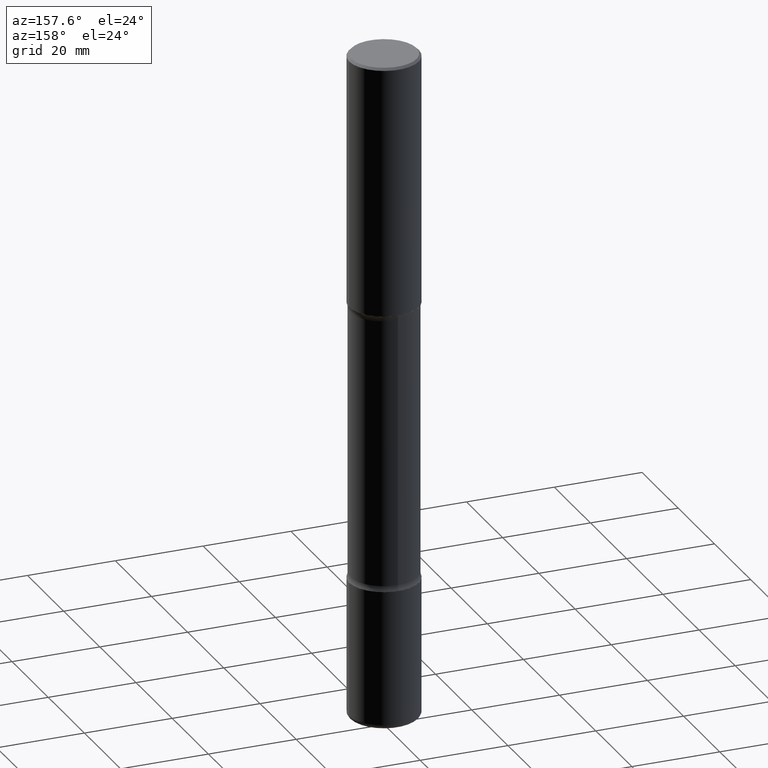
[diagram: clean part render]
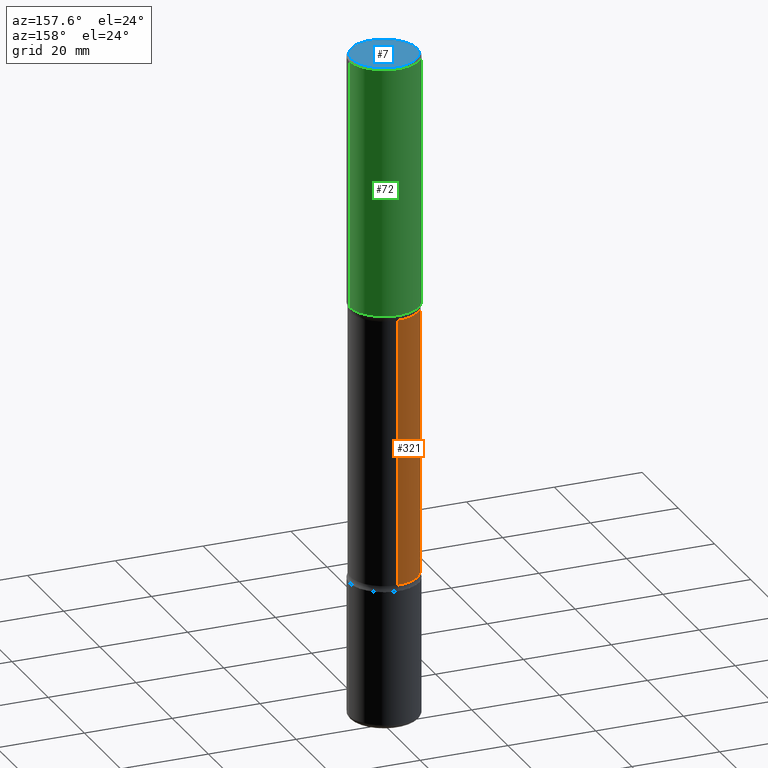
[diagram: same view with three faces highlighted in distinct colors, each labeled with its STEP entity id]
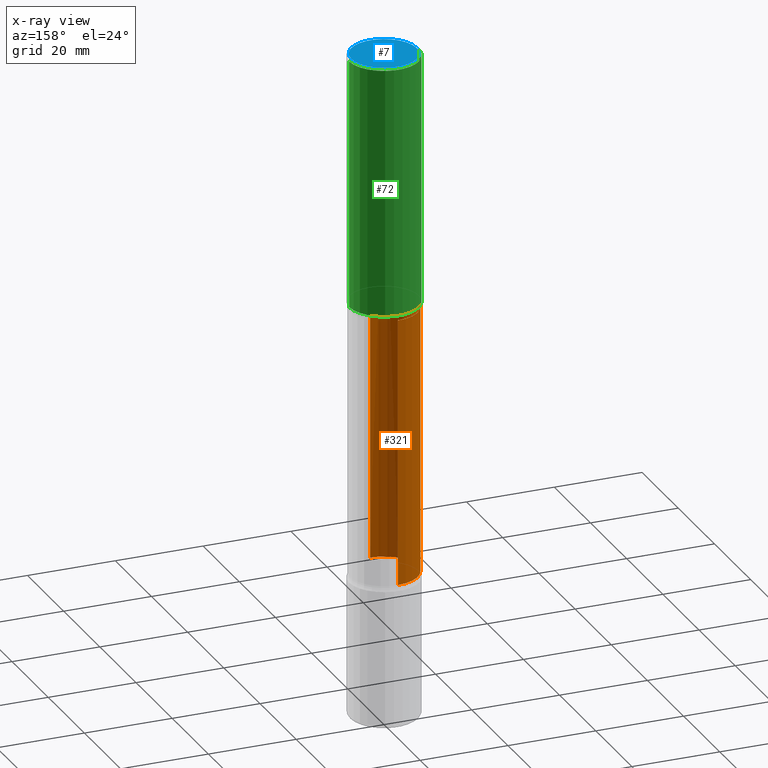
[diagram: x-ray of the same camera — body ghosted, the three highlighted faces saturated]
A machine part, auxiliary view with three faces highlighted in distinct colors.
The next image is the same camera in x-ray (body ghosted, the three faces saturated) — at least one of them is partly hidden behind the body in this view.
Their STEP definitions:

[orange] entity #321 — the highlighted cylindrical surface (edge-blend (fillet) strip) has radius 7.6835 mm, axis along (0, -0, -1).
#3 = VERTEX_POINT ( 'NONE', #541 ) ;
#19 = DIRECTION ( 'NONE',  ( 6.982962677686265133E-15, 1.000000000000000000, -3.612360983357704414E-15 ) ) ;
#25 = ORIENTED_EDGE ( 'NONE', *, *, #513, .F. ) ;
#32 = ORIENTED_EDGE ( 'NONE', *, *, #422, .T. ) ;
#33 = EDGE_CURVE ( 'NONE', #554, #142, #511, .T. ) ;
#38 = DIRECTION ( 'NONE',  ( 6.982962677686265922E-15, 1.000000000000000000, -3.612360983357703625E-15 ) ) ;
#47 = AXIS2_PLACEMENT_3D ( 'NONE', #154, #351, #19 ) ;
#55 = AXIS2_PLACEMENT_3D ( 'NONE', #119, #291, #38 ) ;
#90 = DIRECTION ( 'NONE',  ( 2.521774376508615199E-29, -3.382207419096575054E-15, -1.000000000000000000 ) ) ;
#119 = CARTESIAN_POINT ( 'NONE',  ( 1.476819480001516468E-28, -2.081229563337565590E-14, -5.999999999999999112 ) ) ;
#142 = VERTEX_POINT ( 'NONE', #210 ) ;
#150 = EDGE_LOOP ( 'NONE', ( #492, #32, #421, #25 ) ) ;
#154 = CARTESIAN_POINT ( 'NONE',  ( 1.149243562000197056E-28, -1.641884271188409594E-14, -4.701010205144335430 ) ) ;
#162 = FACE_OUTER_BOUND ( 'NONE', #150, .T. ) ;
#176 = DIRECTION ( 'NONE',  ( 6.982962677686265922E-15, 1.000000000000000000, -3.612360983357702836E-15 ) ) ;
#201 = CARTESIAN_POINT ( 'NONE',  ( -2.109603134314694080E-15, -0.3025000000000083733, -2.298989794855662794 ) ) ;
#210 = CARTESIAN_POINT ( 'NONE',  ( -2.109603134314630577E-15, -0.3025000000000163669, -4.701010205144334542 ) ) ;
#220 = LINE ( 'NONE', #372, #501 ) ;
#246 = AXIS2_PLACEMENT_3D ( 'NONE', #376, #334, #176 ) ;
#251 = CARTESIAN_POINT ( 'NONE',  ( 2.112346210000150269E-15, 0.3024999999999917755, -2.298989794855665014 ) ) ;
#291 = DIRECTION ( 'NONE',  ( 2.521774376508615199E-29, -3.382207419096575054E-15, -1.000000000000000000 ) ) ;
#313 = CARTESIAN_POINT ( 'NONE',  ( -2.075300644325739976E-15, -0.3025000000000207523, -5.999999999999998224 ) ) ;
#316 = VERTEX_POINT ( 'NONE', #251 ) ;
#319 = CIRCLE ( 'NONE', #246, 0.3025000000000000466 ) ;
#321 = ADVANCED_FACE ( 'NONE', ( #162 ), #498, .T. ) ;
#329 = EDGE_CURVE ( 'NONE', #316, #3, #220, .T. ) ;
#334 = DIRECTION ( 'NONE',  ( 2.521774376508615199E-29, -3.382207419096575054E-15, -1.000000000000000000 ) ) ;
#351 = DIRECTION ( 'NONE',  ( 2.521774376508615199E-29, -3.382207419096575054E-15, -1.000000000000000000 ) ) ;
#357 = DIRECTION ( 'NONE',  ( 2.521774376508615199E-29, -3.382207419096575054E-15, -1.000000000000000000 ) ) ;
#372 = CARTESIAN_POINT ( 'NONE',  ( 2.112346210000242960E-15, 0.3024999999999791744, -6.000000000000000888 ) ) ;
#376 = CARTESIAN_POINT ( 'NONE',  ( 5.435082097485287570E-29, -8.294711459384350047E-15, -2.298989794855664126 ) ) ;
#421 = ORIENTED_EDGE ( 'NONE', *, *, #329, .T. ) ;
#422 = EDGE_CURVE ( 'NONE', #554, #316, #319, .T. ) ;
#467 = VECTOR ( 'NONE', #357, 39.37007874015748143 ) ;
#482 = CIRCLE ( 'NONE', #47, 0.3024999999999999356 ) ;
#492 = ORIENTED_EDGE ( 'NONE', *, *, #33, .F. ) ;
#498 = CYLINDRICAL_SURFACE ( 'NONE', #55, 0.3024999999999999911 ) ;
#501 = VECTOR ( 'NONE', #90, 39.37007874015748143 ) ;
#511 = LINE ( 'NONE', #313, #467 ) ;
#513 = EDGE_CURVE ( 'NONE', #142, #3, #482, .T. ) ;
#541 = CARTESIAN_POINT ( 'NONE',  ( 2.112346210000209828E-15, 0.3024999999999835043, -4.701010205144336318 ) ) ;
#554 = VERTEX_POINT ( 'NONE', #201 ) ;

[blue] entity #7 — the highlighted planar face has unit normal (0, -0, -1).
#6 = ORIENTED_EDGE ( 'NONE', *, *, #443, .T. ) ;
#7 = ADVANCED_FACE ( 'NONE', ( #323 ), #114, .F. ) ;
#12 = CARTESIAN_POINT ( 'NONE',  ( 0.000000000000000000, 0.000000000000000000, 0.000000000000000000 ) ) ;
#87 = CARTESIAN_POINT ( 'NONE',  ( -0.2924999999999997602, 2.077431396611662611E-15, -1.440630921208799100E-29 ) ) ;
#114 = PLANE ( 'NONE',  #197 ) ;
#120 = DIRECTION ( 'NONE',  ( -1.000000000000000000, 6.982962677686265922E-15, -4.876176775795935793E-29 ) ) ;
#129 = DIRECTION ( 'NONE',  ( -2.445468806185136597E-29, 3.491481338843145583E-15, 1.000000000000000000 ) ) ;
#139 = CARTESIAN_POINT ( 'NONE',  ( 0.2924999999999997602, -2.110215457714318748E-15, 1.452077414963940822E-29 ) ) ;
#175 = AXIS2_PLACEMENT_3D ( 'NONE', #12, #187, #402 ) ;
#187 = DIRECTION ( 'NONE',  ( -2.445468806185136597E-29, 3.491481338843145583E-15, 1.000000000000000000 ) ) ;
#197 = AXIS2_PLACEMENT_3D ( 'NONE', #413, #216, #120 ) ;
#216 = DIRECTION ( 'NONE',  ( 2.438088387897960049E-29, -3.491481338843145188E-15, -1.000000000000000000 ) ) ;
#280 = CIRCLE ( 'NONE', #175, 0.2924999999999997602 ) ;
#304 = CIRCLE ( 'NONE', #527, 0.2924999999999997602 ) ;
#323 = FACE_OUTER_BOUND ( 'NONE', #353, .T. ) ;
#353 = EDGE_LOOP ( 'NONE', ( #6, #539 ) ) ;
#377 = VERTEX_POINT ( 'NONE', #87 ) ;
#402 = DIRECTION ( 'NONE',  ( 1.000000000000000000, -6.982962677686266711E-15, 4.876176775795936353E-29 ) ) ;
#413 = CARTESIAN_POINT ( 'NONE',  ( 2.042516583223230962E-15, 0.2924999999999997602, -1.021258291611619228E-15 ) ) ;
#443 = EDGE_CURVE ( 'NONE', #377, #559, #304, .T. ) ;
#495 = EDGE_CURVE ( 'NONE', #559, #377, #280, .T. ) ;
#514 = DIRECTION ( 'NONE',  ( 1.000000000000000000, -6.982962677686266711E-15, 4.876176775795936353E-29 ) ) ;
#527 = AXIS2_PLACEMENT_3D ( 'NONE', #553, #129, #514 ) ;
#539 = ORIENTED_EDGE ( 'NONE', *, *, #495, .T. ) ;
#553 = CARTESIAN_POINT ( 'NONE',  ( 0.000000000000000000, 0.000000000000000000, 0.000000000000000000 ) ) ;
#559 = VERTEX_POINT ( 'NONE', #139 ) ;

[green] entity #72 — the highlighted cylindrical surface (partial cylindrical patch) has radius 7.9375 mm, axis along (-0, 0, 1).
#9 = LINE ( 'NONE', #69, #157 ) ;
#15 = ORIENTED_EDGE ( 'NONE', *, *, #362, .T. ) ;
#27 = CARTESIAN_POINT ( 'NONE',  ( 0.3125000000000002776, -1.003800884917403837E-14, -2.249999999999999556 ) ) ;
#48 = DIRECTION ( 'NONE',  ( -2.445468806185136877E-29, 3.491481338843145188E-15, 1.000000000000000000 ) ) ;
#57 = DIRECTION ( 'NONE',  ( 1.000000000000000000, -6.982962677686269077E-15, 0.000000000000000000 ) ) ;
#58 = VERTEX_POINT ( 'NONE', #27 ) ;
#63 = EDGE_CURVE ( 'NONE', #58, #393, #9, .T. ) ;
#69 = CARTESIAN_POINT ( 'NONE',  ( 0.3125000000000000000, -2.182175836776958347E-15, 1.523805242436230075E-29 ) ) ;
#72 = ADVANCED_FACE ( 'NONE', ( #346 ), #536, .T. ) ;
#98 = AXIS2_PLACEMENT_3D ( 'NONE', #446, #483, #159 ) ;
#132 = CARTESIAN_POINT ( 'NONE',  ( 0.3124999999999998335, -2.213735251080466123E-15, -0.02000000000000013572 ) ) ;
#151 = DIRECTION ( 'NONE',  ( -2.445468806185136597E-29, 3.491481338843145583E-15, 1.000000000000000000 ) ) ;
#157 = VECTOR ( 'NONE', #283, 39.37007874015748143 ) ;
#159 = DIRECTION ( 'NONE',  ( 1.000000000000000000, -6.982962677686266711E-15, 4.876176775795936353E-29 ) ) ;
#167 = VERTEX_POINT ( 'NONE', #252 ) ;
#199 = CIRCLE ( 'NONE', #538, 0.3125000000000002776 ) ;
#231 = ORIENTED_EDGE ( 'NONE', *, *, #63, .F. ) ;
#250 = AXIS2_PLACEMENT_3D ( 'NONE', #433, #510, #265 ) ;
#252 = CARTESIAN_POINT ( 'NONE',  ( -0.3125000000000002776, -1.742385270336651087E-15, -2.249999999999999556 ) ) ;
#257 = LINE ( 'NONE', #381, #546 ) ;
#264 = EDGE_LOOP ( 'NONE', ( #550, #15, #424, #231 ) ) ;
#265 = DIRECTION ( 'NONE',  ( 1.000000000000000000, -6.982962677686266711E-15, 0.000000000000000000 ) ) ;
#283 = DIRECTION ( 'NONE',  ( -2.445468806185136877E-29, 3.491481338843145188E-15, 1.000000000000000000 ) ) ;
#342 = CARTESIAN_POINT ( 'NONE',  ( -0.3124999999999998335, 2.112346210000093471E-15, -0.02000000000000013572 ) ) ;
#346 = FACE_OUTER_BOUND ( 'NONE', #264, .T. ) ;
#349 = EDGE_CURVE ( 'NONE', #393, #434, #479, .T. ) ;
#354 = CARTESIAN_POINT ( 'NONE',  ( 5.502304813916556222E-29, -7.855833012397076871E-15, -2.249999999999999556 ) ) ;
#362 = EDGE_CURVE ( 'NONE', #167, #434, #257, .T. ) ;
#381 = CARTESIAN_POINT ( 'NONE',  ( -0.3125000000000000000, 2.220446049250313081E-15, -1.537167215704658232E-29 ) ) ;
#393 = VERTEX_POINT ( 'NONE', #132 ) ;
#424 = ORIENTED_EDGE ( 'NONE', *, *, #349, .F. ) ;
#433 = CARTESIAN_POINT ( 'NONE',  ( 4.890937612370306439E-31, -6.982962677686338448E-17, -0.02000000000000013572 ) ) ;
#434 = VERTEX_POINT ( 'NONE', #342 ) ;
#446 = CARTESIAN_POINT ( 'NONE',  ( 0.000000000000000000, 0.000000000000000000, 0.000000000000000000 ) ) ;
#479 = CIRCLE ( 'NONE', #250, 0.3124999999999998335 ) ;
#483 = DIRECTION ( 'NONE',  ( -2.445468806185136597E-29, 3.491481338843145583E-15, 1.000000000000000000 ) ) ;
#510 = DIRECTION ( 'NONE',  ( -2.445468806185136597E-29, 3.491481338843145583E-15, 1.000000000000000000 ) ) ;
#536 = CYLINDRICAL_SURFACE ( 'NONE', #98, 0.3125000000000000000 ) ;
#538 = AXIS2_PLACEMENT_3D ( 'NONE', #354, #151, #57 ) ;
#546 = VECTOR ( 'NONE', #48, 39.37007874015748143 ) ;
#550 = ORIENTED_EDGE ( 'NONE', *, *, #557, .T. ) ;
#557 = EDGE_CURVE ( 'NONE', #58, #167, #199, .T. ) ;